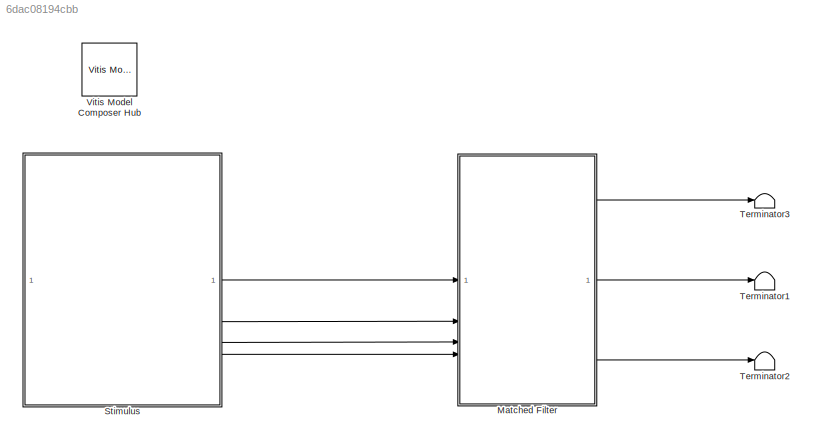
MODEL slx_6dac08194cbb
KIND model
CONFIG AbsTol = auto
CONFIG EnableMultiTasking = off
CONFIG FixedStep = auto
CONFIG MaxStep = auto
CONFIG MinStep = auto
CONFIG PreLoadFcn = fs = 16e6;\n\n% Test tone\nf = 0.2*16e6;\n\n% Parameters\nN = 2048;\nn = 0:N-1;\n\n% Windows\nHamming = 0.54 - 0.46 * cos(2*pi*n/N);\nNorm_Ham = sum(Hamming);\nHanning = 0.5 * (1 + cos(2*pi*n/N));\nNorm_Han = sum(Hanning);
CONFIG RelTol = 1e-3
CONFIG SampleTimeConstraint = Unconstrained
CONFIG SolverName = VariableStepAuto
CONFIG StartTime = 0.0
CONFIG StopTime = 4000/fs
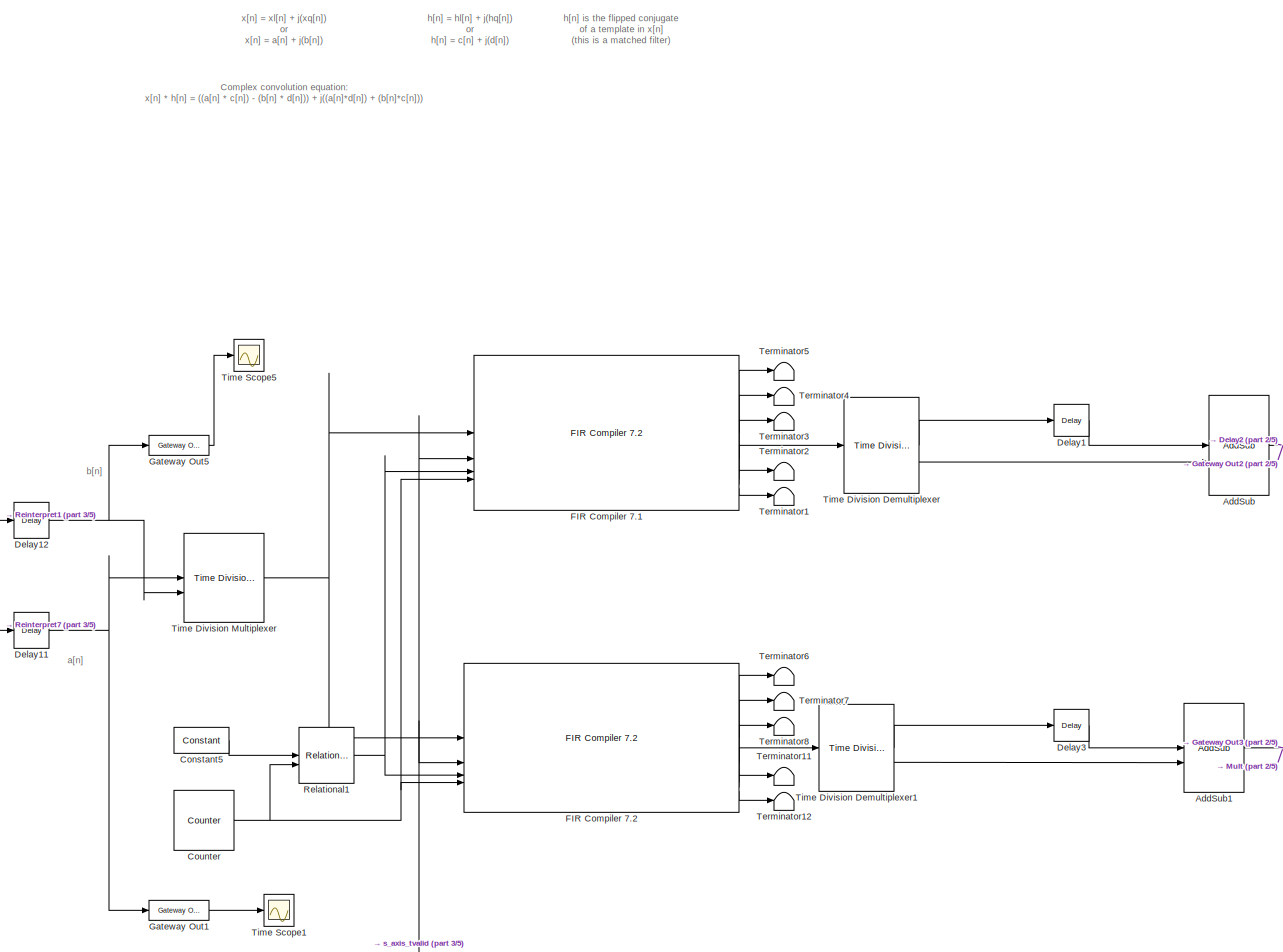
[diagram: Matched Filter - part 1/5, central region]
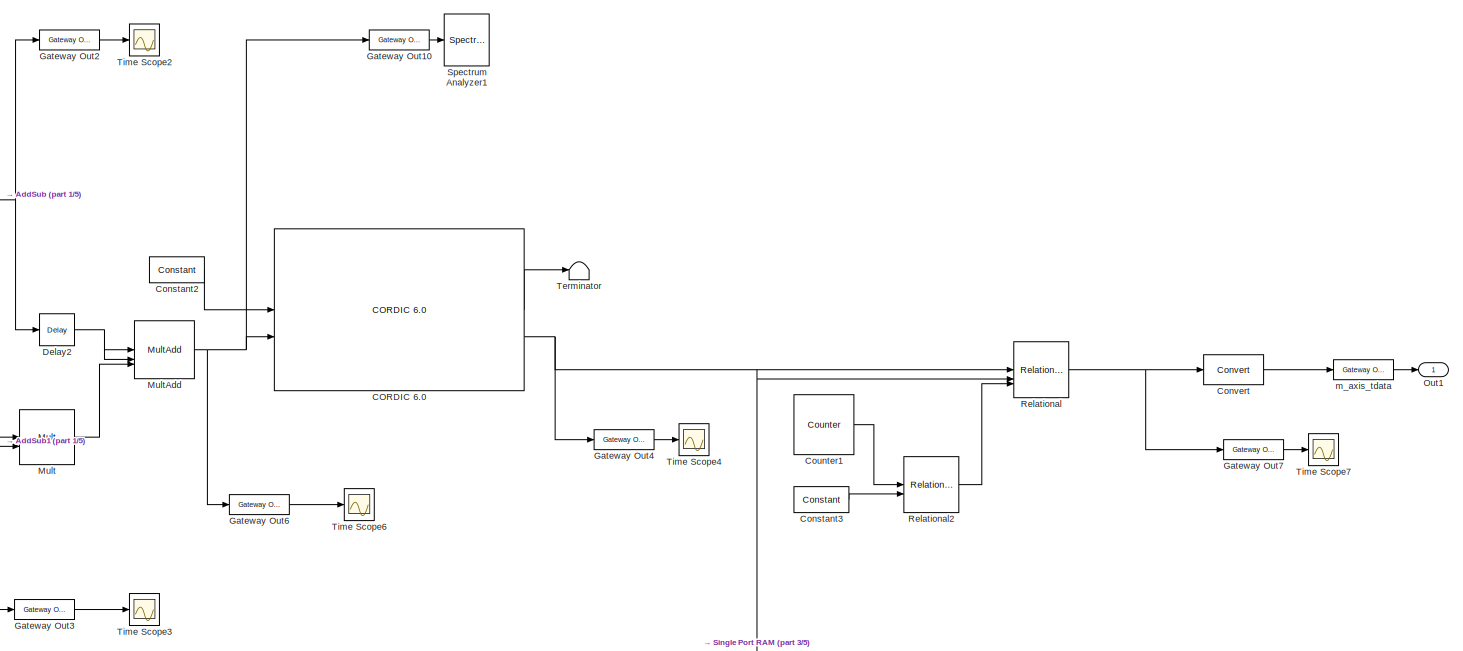
[diagram: Matched Filter - part 2/5, middle right region]
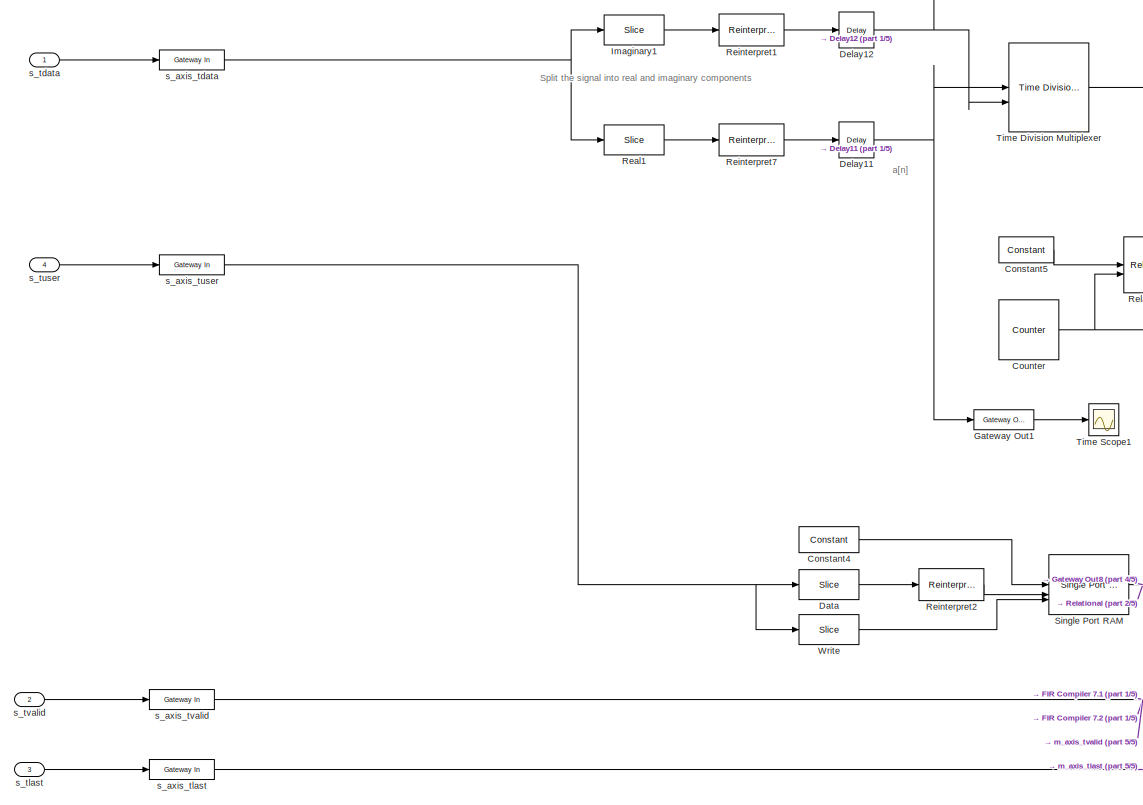
[diagram: Matched Filter - part 3/5, bottom left region]
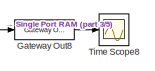
[diagram: Matched Filter - part 4/5, bottom right region]
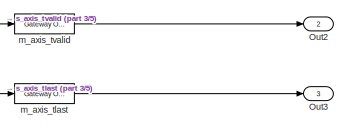
[diagram: Matched Filter - part 5/5, bottom center region]
BLOCK [SubSystem] Matched Filter
BLOCK [Reference] Matched Filter/AddSub  REF=hdlBasic/AddSub
  SourceBlock = hdlBasic/AddSub
  SourceType = Adder/Subtracter Block
BLOCK [Reference] Matched Filter/AddSub1  REF=hdlBasic/AddSub
  SourceBlock = hdlBasic/AddSub
  SourceType = Adder/Subtracter Block
BLOCK [Reference] Matched Filter/CORDIC 6.0  REF=hdlDSPIP/CORDIC 6.0 
  SourceBlock = hdlDSPIP/CORDIC 6.0
  SourceType = CORDIC 6.0 Block
BLOCK [Reference] Matched Filter/Constant2  REF=hdlBasic/Constant
  SourceBlock = hdlBasic/Constant
  SourceType = Constant Block Block
BLOCK [Reference] Matched Filter/Constant3  REF=hdlBasic/Constant
  SourceBlock = hdlBasic/Constant
  SourceType = Constant Block Block
BLOCK [Reference] Matched Filter/Constant4  REF=hdlBasic/Constant
  NameLocation = left
  SourceBlock = hdlBasic/Constant
  SourceType = Constant Block Block
BLOCK [Reference] Matched Filter/Constant5  REF=hdlBasic/Constant
  SourceBlock = hdlBasic/Constant
  SourceType = Constant Block Block
BLOCK [Reference] Matched Filter/Convert  REF=hdlBasic/Convert
  SourceBlock = hdlBasic/Convert
  SourceType = Type Converter Block
BLOCK [Reference] Matched Filter/Counter  REF=hdlBasic/Counter
  SourceBlock = hdlBasic/Counter
  SourceType = Counter Block
BLOCK [Reference] Matched Filter/Counter1  REF=hdlBasic/Counter
  SourceBlock = hdlBasic/Counter
  SourceType = Counter Block
BLOCK [Reference] Matched Filter/Data  REF=hdlBasic/Slice
  SourceBlock = hdlBasic/Slice
  SourceType = Bit Slice Extractor Block
BLOCK [Reference] Matched Filter/Delay1  REF=hdlBasic/Delay
  SourceBlock = hdlBasic/Delay
  SourceType = Delay Block
BLOCK [Reference] Matched Filter/Delay11  REF=hdlBasic/Delay
  SourceBlock = hdlBasic/Delay
  SourceType = Delay Block
BLOCK [Reference] Matched Filter/Delay12  REF=hdlBasic/Delay
  NameLocation = top
  SourceBlock = hdlBasic/Delay
  SourceType = Delay Block
BLOCK [Reference] Matched Filter/Delay2  REF=hdlBasic/Delay
  SourceBlock = hdlBasic/Delay
  SourceType = Delay Block
BLOCK [Reference] Matched Filter/Delay3  REF=hdlBasic/Delay
  SourceBlock = hdlBasic/Delay
  SourceType = Delay Block
BLOCK [Reference] Matched Filter/FIR Compiler 7.1  REF=hdlDSPIP/FIR Compiler 7.2 
  SourceBlock = hdlDSPIP/FIR Compiler 7.2
  SourceType = FIR Compiler 7.2 Block
BLOCK [Reference] Matched Filter/FIR Compiler 7.2  REF=hdlDSPIP/FIR Compiler 7.2 
  SourceBlock = hdlDSPIP/FIR Compiler 7.2
  SourceType = FIR Compiler 7.2 Block
BLOCK [Reference] Matched Filter/Gateway Out1  REF=hdlBasic/Gateway Out
  SourceBlock = hdlBasic/Gateway Out
  SourceType = Gateway Out Block
BLOCK [Reference] Matched Filter/Gateway Out10  REF=hdlBasic/Gateway Out
  Commented = on
  SourceBlock = hdlBasic/Gateway Out
  SourceType = Gateway Out Block
BLOCK [Reference] Matched Filter/Gateway Out2  REF=hdlBasic/Gateway Out
  SourceBlock = hdlBasic/Gateway Out
  SourceType = Gateway Out Block
BLOCK [Reference] Matched Filter/Gateway Out3  REF=hdlBasic/Gateway Out
  SourceBlock = hdlBasic/Gateway Out
  SourceType = Gateway Out Block
BLOCK [Reference] Matched Filter/Gateway Out4  REF=hdlBasic/Gateway Out
  SourceBlock = hdlBasic/Gateway Out
  SourceType = Gateway Out Block
BLOCK [Reference] Matched Filter/Gateway Out5  REF=hdlBasic/Gateway Out
  SourceBlock = hdlBasic/Gateway Out
  SourceType = Gateway Out Block
BLOCK [Reference] Matched Filter/Gateway Out6  REF=hdlBasic/Gateway Out
  SourceBlock = hdlBasic/Gateway Out
  SourceType = Gateway Out Block
BLOCK [Reference] Matched Filter/Gateway Out7  REF=hdlBasic/Gateway Out
  SourceBlock = hdlBasic/Gateway Out
  SourceType = Gateway Out Block
BLOCK [Reference] Matched Filter/Gateway Out8  REF=hdlBasic/Gateway Out
  SourceBlock = hdlBasic/Gateway Out
  SourceType = Gateway Out Block
BLOCK [Reference] Matched Filter/Imaginary1  REF=hdlBasic/Slice
  SourceBlock = hdlBasic/Slice
  SourceType = Bit Slice Extractor Block
BLOCK [Reference] Matched Filter/Mult  REF=hdlBasic/Mult
  SourceBlock = hdlBasic/Mult
  SourceType = Multiplier Block
BLOCK [Reference] Matched Filter/MultAdd  REF=hdlBasic/MultAdd
  SourceBlock = hdlBasic/MultAdd
  SourceType = Multiply Adder Block
BLOCK [Outport] Matched Filter/Out1
BLOCK [Outport] Matched Filter/Out2
  Port = 2
BLOCK [Outport] Matched Filter/Out3
  Port = 3
BLOCK [Reference] Matched Filter/Real1  REF=hdlBasic/Slice
  SourceBlock = hdlBasic/Slice
  SourceType = Bit Slice Extractor Block
BLOCK [Reference] Matched Filter/Reinterpret1  REF=hdlBasic/Reinterpret
  SourceBlock = hdlBasic/Reinterpret
  SourceType = Type Reinterpreter Block
BLOCK [Reference] Matched Filter/Reinterpret2  REF=hdlBasic/Reinterpret
  SourceBlock = hdlBasic/Reinterpret
  SourceType = Type Reinterpreter Block
BLOCK [Reference] Matched Filter/Reinterpret7  REF=hdlBasic/Reinterpret
  SourceBlock = hdlBasic/Reinterpret
  SourceType = Type Reinterpreter Block
BLOCK [Reference] Matched Filter/Relational  REF=hdlBasic/Relational
  SourceBlock = hdlBasic/Relational
  SourceType = Arithmetic Relational Operator Block
BLOCK [Reference] Matched Filter/Relational1  REF=hdlBasic/Relational
  SourceBlock = hdlBasic/Relational
  SourceType = Arithmetic Relational Operator Block
BLOCK [Reference] Matched Filter/Relational2  REF=hdlBasic/Relational
  SourceBlock = hdlBasic/Relational
  SourceType = Arithmetic Relational Operator Block
BLOCK [Reference] Matched Filter/Single Port RAM  REF=hdlBasic/Single Port RAM
  SourceBlock = hdlBasic/Single Port RAM
  SourceType = Single Port Random Access Memory Block
BLOCK [SpectrumAnalyzer] Matched Filter/Spectrum Analyzer1
  AveragingMethod = Exponential
  AxesScaling = Manual
  Commented = on
  DefaultConfigurationName = spbscopes.SpectrumAnalyzerBlockCfg
  FrequencyInputRBWFromPort = 0
  FrequencyInputRBWPort = 0
  FrequencyVectorFromPort = 0
  FrequencyVectorPort = 0
  GraphicalSettings = {"GraphicalSettings":{"SpectralMask":{"CustomReferenceLevel":"0","EnabledMasks":"None","LowerMask":"-Inf","MaskFrequencyOffset":"0","ReferenceLevel":"Custom","SelectedChannel":"1","UpperMask":"Inf"},"Style":{"AxesColor":"[0 0 0]","DisplayName":"","LabelsColor":"[0.686274509803922 0.686274509803922 0.686274509803922]","LineStyle":"-","LineWidth":"0.5","Marker":"none","MarkerEdgeColor":"auto","Marke...<+119ch>
  IsFrequencyInputMode = 0
  SampleRate = 16000000
  ScopeSpecificationString = spbscopes.SpectrumAnalyzerBlockCfg('CurrentConfiguration', extmgr.ConfigurationSet(extmgr.Configuration('Core','General UI',true),extmgr.Configuration('Core','Source UI',true),extmgr.Configuration('Sources','WiredSimulink',true),extmgr.Configuration('Visuals','Spectrum',true,'AxesProperties',struct('Color',{[0 0 0],[0 0 0]},'XColor',{[0.686274509803922 0.686274509803922 0.686274509803922],[0.68627...<+1981ch>
  Span = 16000000
  StartFrequency = -8000000
  StopFrequency = 8000000
  WasSavedAsWebScope = on
  YLimits = [-85.389381881293900278,31.375193648210043307]
BLOCK [Terminator] Matched Filter/Terminator
BLOCK [Terminator] Matched Filter/Terminator1
BLOCK [Terminator] Matched Filter/Terminator11
BLOCK [Terminator] Matched Filter/Terminator12
BLOCK [Terminator] Matched Filter/Terminator2
BLOCK [Terminator] Matched Filter/Terminator3
BLOCK [Terminator] Matched Filter/Terminator4
BLOCK [Terminator] Matched Filter/Terminator5
BLOCK [Terminator] Matched Filter/Terminator6
BLOCK [Terminator] Matched Filter/Terminator7
BLOCK [Terminator] Matched Filter/Terminator8
BLOCK [Reference] Matched Filter/Time Division Demultiplexer  REF=hdlBasic/Time Division Demultiplexer
  SourceBlock = hdlBasic/Time Division Demultiplexer
  SourceType = Time Division Demultiplexer Block
BLOCK [Reference] Matched Filter/Time Division Demultiplexer1  REF=hdlBasic/Time Division Demultiplexer
  SourceBlock = hdlBasic/Time Division Demultiplexer
  SourceType = Time Division Demultiplexer Block
BLOCK [Reference] Matched Filter/Time Division Multiplexer  REF=hdlBasic/Time Division Multiplexer
  SourceBlock = hdlBasic/Time Division Multiplexer
  SourceType = Time Division Multiplexer Block
BLOCK [Scope] Matched Filter/Time Scope1
  DefaultConfigurationName = spbscopes.TimeScopeBlockCfg
  Floating = off
  NumInputPorts = 1
  ScopeSpecificationString = spbscopes.TimeScopeBlockCfg('CurrentConfiguration', extmgr.ConfigurationSet(extmgr.Configuration('Core','General UI',true,'FigureColor',[0.156862745098039 0.156862745098039 0.156862745098039]),extmgr.Configuration('Core','Source UI',true),extmgr.Configuration('Sources','WiredSimulink',true,'DataLoggingVariableName','ScopeData1'),extmgr.Configuration('Visuals','Time Domain',true,'DisplayPropertyDef...<+1539ch>
  UserDataPersistent = on
BLOCK [Scope] Matched Filter/Time Scope2
  DefaultConfigurationName = spbscopes.TimeScopeBlockCfg
  Floating = off
  NumInputPorts = 1
  ScopeSpecificationString = spbscopes.TimeScopeBlockCfg('CurrentConfiguration', extmgr.ConfigurationSet(extmgr.Configuration('Core','General UI',true,'FigureColor',[0.156862745098039 0.156862745098039 0.156862745098039]),extmgr.Configuration('Core','Source UI',true),extmgr.Configuration('Sources','WiredSimulink',true,'DataLoggingVariableName','ScopeData2'),extmgr.Configuration('Visuals','Time Domain',true,'DisplayPropertyDef...<+1518ch>
  UserDataPersistent = on
BLOCK [Scope] Matched Filter/Time Scope3
  DefaultConfigurationName = spbscopes.TimeScopeBlockCfg
  Floating = off
  NumInputPorts = 1
  ScopeSpecificationString = spbscopes.TimeScopeBlockCfg('CurrentConfiguration', extmgr.ConfigurationSet(extmgr.Configuration('Core','General UI',true,'FigureColor',[0.156862745098039 0.156862745098039 0.156862745098039]),extmgr.Configuration('Core','Source UI',true),extmgr.Configuration('Sources','WiredSimulink',true,'DataLoggingVariableName','ScopeData3'),extmgr.Configuration('Visuals','Time Domain',true,'DisplayPropertyDef...<+1515ch>
  UserDataPersistent = on
BLOCK [Scope] Matched Filter/Time Scope4
  DefaultConfigurationName = spbscopes.TimeScopeBlockCfg
  Floating = off
  NumInputPorts = 1
  ScopeSpecificationString = spbscopes.TimeScopeBlockCfg('CurrentConfiguration', extmgr.ConfigurationSet(extmgr.Configuration('Core','General UI',true,'FigureColor',[0.156862745098039 0.156862745098039 0.156862745098039]),extmgr.Configuration('Core','Source UI',true),extmgr.Configuration('Sources','WiredSimulink',true,'DataLoggingVariableName','ScopeData4'),extmgr.Configuration('Visuals','Time Domain',true,'DisplayPropertyDef...<+1531ch>
  UserDataPersistent = on
BLOCK [Scope] Matched Filter/Time Scope5
  DefaultConfigurationName = spbscopes.TimeScopeBlockCfg
  Floating = off
  NumInputPorts = 1
  ScopeSpecificationString = spbscopes.TimeScopeBlockCfg('CurrentConfiguration', extmgr.ConfigurationSet(extmgr.Configuration('Core','General UI',true,'FigureColor',[0.156862745098039 0.156862745098039 0.156862745098039]),extmgr.Configuration('Core','Source UI',true),extmgr.Configuration('Sources','WiredSimulink',true,'DataLoggingVariableName','ScopeData1'),extmgr.Configuration('Visuals','Time Domain',true,'DisplayPropertyDef...<+1539ch>
  UserDataPersistent = on
BLOCK [Scope] Matched Filter/Time Scope6
  DefaultConfigurationName = spbscopes.TimeScopeBlockCfg
  Floating = off
  NumInputPorts = 1
  ScopeSpecificationString = spbscopes.TimeScopeBlockCfg('CurrentConfiguration', extmgr.ConfigurationSet(extmgr.Configuration('Core','General UI',true,'FigureColor',[0.156862745098039 0.156862745098039 0.156862745098039]),extmgr.Configuration('Core','Source UI',true),extmgr.Configuration('Sources','WiredSimulink',true,'DataLoggingVariableName','ScopeData2'),extmgr.Configuration('Visuals','Time Domain',true,'DisplayPropertyDef...<+1518ch>
  UserDataPersistent = on
BLOCK [Scope] Matched Filter/Time Scope7
  DefaultConfigurationName = spbscopes.TimeScopeBlockCfg
  Floating = off
  NumInputPorts = 1
  ScopeSpecificationString = spbscopes.TimeScopeBlockCfg('CurrentConfiguration', extmgr.ConfigurationSet(extmgr.Configuration('Core','General UI',true,'FigureColor',[0.156862745098039 0.156862745098039 0.156862745098039]),extmgr.Configuration('Core','Source UI',true),extmgr.Configuration('Sources','WiredSimulink',true,'DataLoggingVariableName','ScopeData1'),extmgr.Configuration('Visuals','Time Domain',true,'DisplayPropertyDef...<+1501ch>
  UserDataPersistent = on
BLOCK [Scope] Matched Filter/Time Scope8
  DefaultConfigurationName = spbscopes.TimeScopeBlockCfg
  Floating = off
  NumInputPorts = 1
  ScopeSpecificationString = spbscopes.TimeScopeBlockCfg('CurrentConfiguration', extmgr.ConfigurationSet(extmgr.Configuration('Core','General UI',true,'FigureColor',[0.156862745098039 0.156862745098039 0.156862745098039]),extmgr.Configuration('Core','Source UI',true),extmgr.Configuration('Sources','WiredSimulink',true,'DataLoggingVariableName','ScopeData1'),extmgr.Configuration('Visuals','Time Domain',true,'DisplayPropertyDef...<+1503ch>
  UserDataPersistent = on
BLOCK [Reference] Matched Filter/Write  REF=hdlBasic/Slice
  SourceBlock = hdlBasic/Slice
  SourceType = Bit Slice Extractor Block
BLOCK [Reference] Matched Filter/m_axis_tdata  REF=hdlBasic/Gateway Out
  SourceBlock = hdlBasic/Gateway Out
  SourceType = Gateway Out Block
BLOCK [Reference] Matched Filter/m_axis_tlast  REF=hdlBasic/Gateway Out
  SourceBlock = hdlBasic/Gateway Out
  SourceType = Gateway Out Block
BLOCK [Reference] Matched Filter/m_axis_tvalid  REF=hdlBasic/Gateway Out
  SourceBlock = hdlBasic/Gateway Out
  SourceType = Gateway Out Block
BLOCK [Reference] Matched Filter/s_axis_tdata  REF=hdlBasic/Gateway In
  SourceBlock = hdlBasic/Gateway In
  SourceType = Gateway In Block
BLOCK [Reference] Matched Filter/s_axis_tlast  REF=hdlBasic/Gateway In
  SourceBlock = hdlBasic/Gateway In
  SourceType = Gateway In Block
BLOCK [Reference] Matched Filter/s_axis_tuser  REF=hdlBasic/Gateway In
  SourceBlock = hdlBasic/Gateway In
  SourceType = Gateway In Block
BLOCK [Reference] Matched Filter/s_axis_tvalid  REF=hdlBasic/Gateway In
  SourceBlock = hdlBasic/Gateway In
  SourceType = Gateway In Block
BLOCK [Inport] Matched Filter/s_tdata
BLOCK [Inport] Matched Filter/s_tlast
  Port = 3
BLOCK [Inport] Matched Filter/s_tuser
  Port = 4
BLOCK [Inport] Matched Filter/s_tvalid
  Port = 2
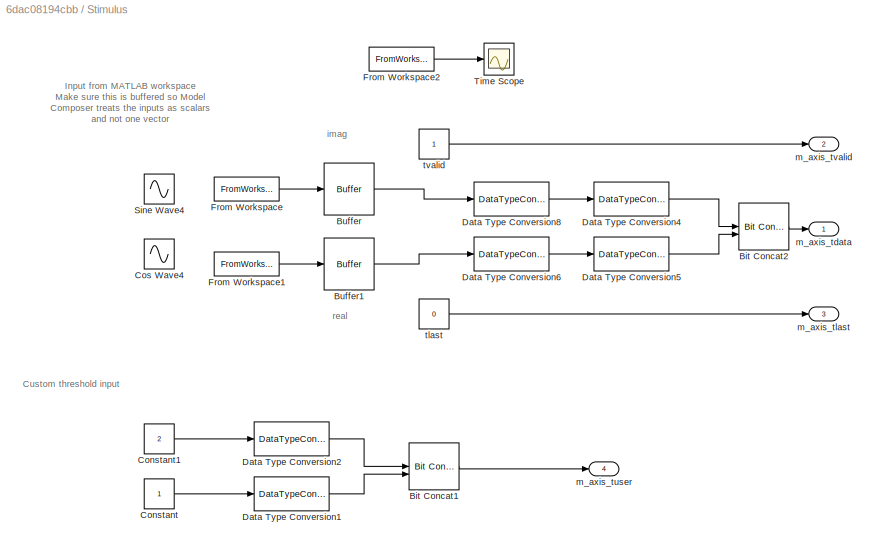
BLOCK [SubSystem] Stimulus
BLOCK [Reference] Stimulus/Bit Concat1  REF=hdlsllib/Logic and Bit
Operations/Bit Concat
  SourceBlock = hdlsllib/Logic and Bit\nOperations/Bit Concat
  SourceType = Bit Concat
BLOCK [Reference] Stimulus/Bit Concat2  REF=hdlsllib/Logic and Bit
Operations/Bit Concat
  SourceBlock = hdlsllib/Logic and Bit\nOperations/Bit Concat
  SourceType = Bit Concat
BLOCK [Buffer] Stimulus/Buffer
  N = 1
  OutputFrames = off
BLOCK [Buffer] Stimulus/Buffer1
  N = 1
  OutputFrames = off
BLOCK [Constant] Stimulus/Constant
  SampleTime = 1/fs
BLOCK [Constant] Stimulus/Constant1
  SampleTime = 1/fs
  Value = 2
BLOCK [Sin] Stimulus/Cos Wave4
  Amplitude = 0.4
  Commented = on
  Frequency = f*pi
  Phase = pi/2
  SampleTime = 1/fs
BLOCK [DataTypeConversion] Stimulus/Data Type Conversion1
  OutDataTypeStr = boolean
  RndMeth = Floor
BLOCK [DataTypeConversion] Stimulus/Data Type Conversion2
  OutDataTypeStr = fixdt(1,15,6)
  RndMeth = Floor
BLOCK [DataTypeConversion] Stimulus/Data Type Conversion4
  ConvertRealWorld = Stored Integer (SI)
  OutDataTypeStr = uint16
  RndMeth = Floor
  SaturateOnIntegerOverflow = off
BLOCK [DataTypeConversion] Stimulus/Data Type Conversion5
  ConvertRealWorld = Stored Integer (SI)
  OutDataTypeStr = uint16
  RndMeth = Floor
  SaturateOnIntegerOverflow = off
BLOCK [DataTypeConversion] Stimulus/Data Type Conversion6
  OutDataTypeStr = fixdt(1,16,15)
  RndMeth = Floor
BLOCK [DataTypeConversion] Stimulus/Data Type Conversion8
  OutDataTypeStr = fixdt(1,16,15)
  RndMeth = Floor
BLOCK [FromWorkspace] Stimulus/From Workspace
  OutDataTypeStr = double
  SampleTime = 1500/fs
  VariableName = imag(test)
BLOCK [FromWorkspace] Stimulus/From Workspace1
  OutDataTypeStr = double
  SampleTime = 1500/fs
  VariableName = real(test)
BLOCK [FromWorkspace] Stimulus/From Workspace2
  Commented = on
  OutputAfterFinalValue = Setting to zero
  SampleTime = 1500/fs
  VariableName = Ih_noise
BLOCK [Sin] Stimulus/Sine Wave4
  Amplitude = 0.4
  Commented = on
  Frequency = f*pi
  SampleTime = 1/fs
BLOCK [Scope] Stimulus/Time Scope
  Commented = on
  DefaultConfigurationName = spbscopes.TimeScopeBlockCfg
  Floating = off
  NumInputPorts = 1
  ScopeSpecificationString = spbscopes.TimeScopeBlockCfg('CurrentConfiguration', extmgr.ConfigurationSet(extmgr.Configuration('Core','General UI',true,'FigureColor',[0.156862745098039 0.156862745098039 0.156862745098039]),extmgr.Configuration('Core','Source UI',true),extmgr.Configuration('Sources','WiredSimulink',true,'DataLoggingVariableName','ScopeData1'),extmgr.Configuration('Visuals','Time Domain',true,'DisplayPropertyDef...<+1544ch>
  UserDataPersistent = on
BLOCK [Outport] Stimulus/m_axis_tdata
BLOCK [Outport] Stimulus/m_axis_tlast
  Port = 3
BLOCK [Outport] Stimulus/m_axis_tuser
  Port = 4
BLOCK [Outport] Stimulus/m_axis_tvalid
  Port = 2
BLOCK [Constant] Stimulus/tlast
  SampleTime = 1/fs
  Value = 0
BLOCK [Constant] Stimulus/tvalid
  SampleTime = 1/fs
BLOCK [Terminator] Terminator1
BLOCK [Terminator] Terminator2
BLOCK [Terminator] Terminator3
BLOCK [Reference] Vitis Model Composer Hub  REF=vmcUtilities/Vitis Model Composer Hub
  SourceBlock = vmcUtilities/Vitis Model Composer Hub
  SourceType = VMC Hub
  Tag = genX
  UserDataPersistent = on
ANNOTATION Matched Filter: h[n] = hl[n] + j(hq[n]) or h[n] = c[n] + j(d[n])
ANNOTATION Matched Filter: x[n] = xl[n] + j(xq[n]) or x[n] = a[n] + j(b[n])
ANNOTATION Matched Filter: Complex convolution equation: x[n] * h[n] = ((a[n] * c[n]) - (b[n] * d[n])) + j((a[n]*d[n]) + (b[n]*c[n]))
ANNOTATION Matched Filter: h[n] is the flipped conjugate of a template in x[n] (this is a matched filter)
ANNOTATION Matched Filter: Split the signal into real and imaginary components
ANNOTATION Matched Filter: a[n]
ANNOTATION Matched Filter: b[n]
ANNOTATION Stimulus: Custom threshold input
ANNOTATION Stimulus: Input from MATLAB workspace Make sure this is buffered so Model Composer treats the inputs as scalars and not one vector
ANNOTATION Stimulus: imag
ANNOTATION Stimulus: real
NET Matched Filter/AddSub1:1 -> Matched Filter/Gateway Out3:1, Matched Filter/Mult:1, Matched Filter/Mult:2
NET Matched Filter/AddSub:1 -> Matched Filter/Delay2:1, Matched Filter/Gateway Out2:1
LINE Matched Filter/CORDIC 6.0:1 -> Matched Filter/Terminator:1
NET Matched Filter/CORDIC 6.0:2 -> Matched Filter/Gateway Out4:1, Matched Filter/Relational:1
LINE Matched Filter/Constant2:1 -> Matched Filter/CORDIC 6.0:1
LINE Matched Filter/Constant3:1 -> Matched Filter/Relational2:2
LINE Matched Filter/Constant4:1 -> Matched Filter/Single Port RAM:1
LINE Matched Filter/Constant5:1 -> Matched Filter/Relational1:1
LINE Matched Filter/Convert:1 -> Matched Filter/m_axis_tdata:1
LINE Matched Filter/Counter1:1 -> Matched Filter/Relational2:1
NET Matched Filter/Counter:1 -> Matched Filter/FIR Compiler 7.1:4, Matched Filter/FIR Compiler 7.2:4, Matched Filter/Relational1:2
LINE Matched Filter/Data:1 -> Matched Filter/Reinterpret2:1
NET Matched Filter/Delay11:1 -> Matched Filter/Gateway Out1:1, Matched Filter/Time Division Multiplexer:1
NET Matched Filter/Delay12:1 -> Matched Filter/Gateway Out5:1, Matched Filter/Time Division Multiplexer:2
LINE Matched Filter/Delay1:1 -> Matched Filter/AddSub:1
NET Matched Filter/Delay2:1 -> Matched Filter/MultAdd:1, Matched Filter/MultAdd:2
LINE Matched Filter/Delay3:1 -> Matched Filter/AddSub1:1
LINE Matched Filter/FIR Compiler 7.1:1 -> Matched Filter/Terminator5:1
LINE Matched Filter/FIR Compiler 7.1:2 -> Matched Filter/Terminator4:1
LINE Matched Filter/FIR Compiler 7.1:3 -> Matched Filter/Terminator3:1
LINE Matched Filter/FIR Compiler 7.1:4 -> Matched Filter/Time Division Demultiplexer:1
LINE Matched Filter/FIR Compiler 7.1:5 -> Matched Filter/Terminator2:1
LINE Matched Filter/FIR Compiler 7.1:6 -> Matched Filter/Terminator1:1
LINE Matched Filter/FIR Compiler 7.2:1 -> Matched Filter/Terminator6:1
LINE Matched Filter/FIR Compiler 7.2:2 -> Matched Filter/Terminator7:1
LINE Matched Filter/FIR Compiler 7.2:3 -> Matched Filter/Terminator8:1
LINE Matched Filter/FIR Compiler 7.2:4 -> Matched Filter/Time Division Demultiplexer1:1
LINE Matched Filter/FIR Compiler 7.2:5 -> Matched Filter/Terminator11:1
LINE Matched Filter/FIR Compiler 7.2:6 -> Matched Filter/Terminator12:1
LINE Matched Filter/Gateway Out10:1 -> Matched Filter/Spectrum Analyzer1:1
LINE Matched Filter/Gateway Out1:1 -> Matched Filter/Time Scope1:1
LINE Matched Filter/Gateway Out2:1 -> Matched Filter/Time Scope2:1
LINE Matched Filter/Gateway Out3:1 -> Matched Filter/Time Scope3:1
LINE Matched Filter/Gateway Out4:1 -> Matched Filter/Time Scope4:1
LINE Matched Filter/Gateway Out5:1 -> Matched Filter/Time Scope5:1
LINE Matched Filter/Gateway Out6:1 -> Matched Filter/Time Scope6:1
LINE Matched Filter/Gateway Out7:1 -> Matched Filter/Time Scope7:1
LINE Matched Filter/Gateway Out8:1 -> Matched Filter/Time Scope8:1
LINE Matched Filter/Imaginary1:1 -> Matched Filter/Reinterpret1:1
LINE Matched Filter/Mult:1 -> Matched Filter/MultAdd:3
NET Matched Filter/MultAdd:1 -> Matched Filter/CORDIC 6.0:2, Matched Filter/Gateway Out10:1, Matched Filter/Gateway Out6:1
LINE Matched Filter/Real1:1 -> Matched Filter/Reinterpret7:1
LINE Matched Filter/Reinterpret1:1 -> Matched Filter/Delay12:1
LINE Matched Filter/Reinterpret2:1 -> Matched Filter/Single Port RAM:2
LINE Matched Filter/Reinterpret7:1 -> Matched Filter/Delay11:1
NET Matched Filter/Relational1:1 -> Matched Filter/FIR Compiler 7.1:3, Matched Filter/FIR Compiler 7.2:3
LINE Matched Filter/Relational2:1 -> Matched Filter/Relational:3
NET Matched Filter/Relational:1 -> Matched Filter/Convert:1, Matched Filter/Gateway Out7:1
NET Matched Filter/Single Port RAM:1 -> Matched Filter/Gateway Out8:1, Matched Filter/Relational:2
LINE Matched Filter/Time Division Demultiplexer1:1 -> Matched Filter/Delay3:1
LINE Matched Filter/Time Division Demultiplexer1:2 -> Matched Filter/AddSub1:2
LINE Matched Filter/Time Division Demultiplexer:1 -> Matched Filter/Delay1:1
LINE Matched Filter/Time Division Demultiplexer:2 -> Matched Filter/AddSub:2
NET Matched Filter/Time Division Multiplexer:1 -> Matched Filter/FIR Compiler 7.1:1, Matched Filter/FIR Compiler 7.2:1
LINE Matched Filter/Write:1 -> Matched Filter/Single Port RAM:3
LINE Matched Filter/m_axis_tdata:1 -> Matched Filter/Out1:1
LINE Matched Filter/m_axis_tlast:1 -> Matched Filter/Out3:1
LINE Matched Filter/m_axis_tvalid:1 -> Matched Filter/Out2:1
NET Matched Filter/s_axis_tdata:1 -> Matched Filter/Imaginary1:1, Matched Filter/Real1:1
LINE Matched Filter/s_axis_tlast:1 -> Matched Filter/m_axis_tlast:1
NET Matched Filter/s_axis_tuser:1 -> Matched Filter/Data:1, Matched Filter/Write:1
NET Matched Filter/s_axis_tvalid:1 -> Matched Filter/FIR Compiler 7.1:2, Matched Filter/FIR Compiler 7.2:2, Matched Filter/m_axis_tvalid:1
LINE Matched Filter/s_tdata:1 -> Matched Filter/s_axis_tdata:1
LINE Matched Filter/s_tlast:1 -> Matched Filter/s_axis_tlast:1
LINE Matched Filter/s_tuser:1 -> Matched Filter/s_axis_tuser:1
LINE Matched Filter/s_tvalid:1 -> Matched Filter/s_axis_tvalid:1
LINE Matched Filter:1 -> Terminator3:1
LINE Matched Filter:2 -> Terminator1:1
LINE Matched Filter:3 -> Terminator2:1
LINE Stimulus/Bit Concat1:1 -> Stimulus/m_axis_tuser:1
LINE Stimulus/Bit Concat2:1 -> Stimulus/m_axis_tdata:1
LINE Stimulus/Buffer1:1 -> Stimulus/Data Type Conversion6:1
LINE Stimulus/Buffer:1 -> Stimulus/Data Type Conversion8:1
LINE Stimulus/Constant1:1 -> Stimulus/Data Type Conversion2:1
LINE Stimulus/Constant:1 -> Stimulus/Data Type Conversion1:1
LINE Stimulus/Data Type Conversion1:1 -> Stimulus/Bit Concat1:2
LINE Stimulus/Data Type Conversion2:1 -> Stimulus/Bit Concat1:1
LINE Stimulus/Data Type Conversion4:1 -> Stimulus/Bit Concat2:1
LINE Stimulus/Data Type Conversion5:1 -> Stimulus/Bit Concat2:2
LINE Stimulus/Data Type Conversion6:1 -> Stimulus/Data Type Conversion5:1
LINE Stimulus/Data Type Conversion8:1 -> Stimulus/Data Type Conversion4:1
LINE Stimulus/From Workspace1:1 -> Stimulus/Buffer1:1
LINE Stimulus/From Workspace2:1 -> Stimulus/Time Scope:1
LINE Stimulus/From Workspace:1 -> Stimulus/Buffer:1
LINE Stimulus/tlast:1 -> Stimulus/m_axis_tlast:1
LINE Stimulus/tvalid:1 -> Stimulus/m_axis_tvalid:1
LINE Stimulus:1 -> Matched Filter:1
LINE Stimulus:2 -> Matched Filter:2
LINE Stimulus:3 -> Matched Filter:3
LINE Stimulus:4 -> Matched Filter:4
note: NET lines group one-source signal fan-out (src -> all destinations, sorted); 1:1 wires keep LINE
